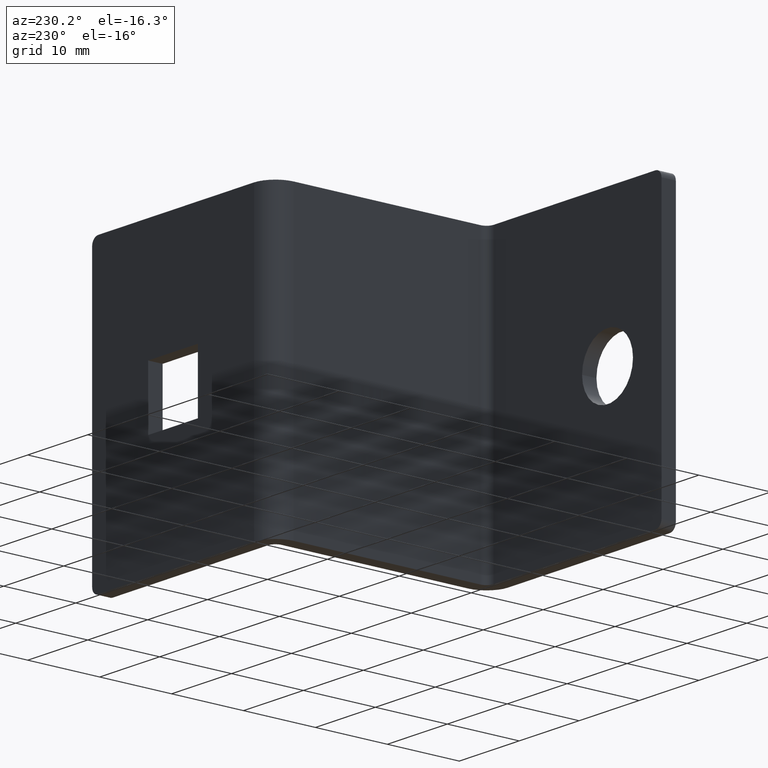
[diagram: clean part render]
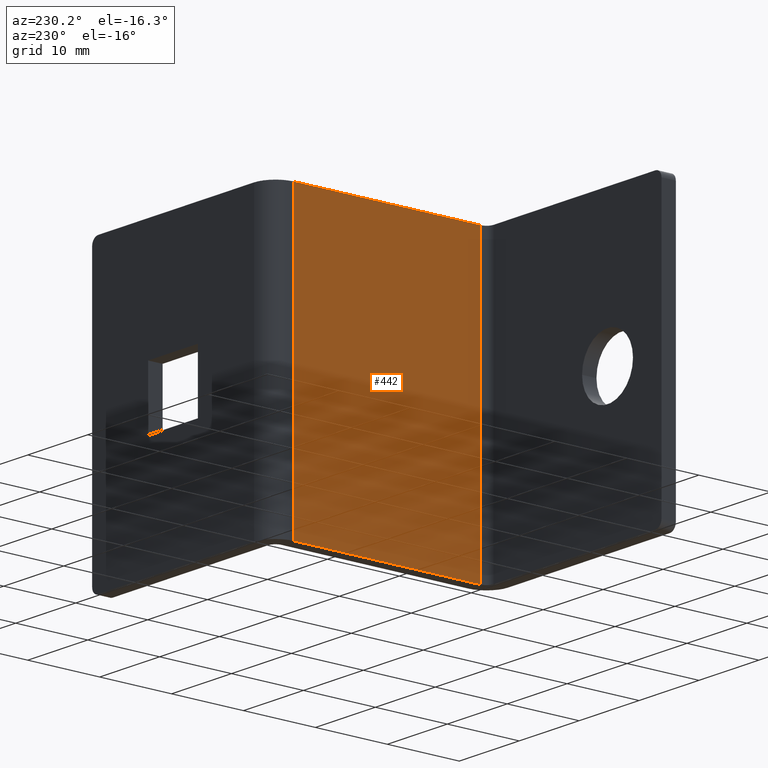
[diagram: same view with one face highlighted and labeled with its STEP entity id]
A machine part, auxiliary view. The second image highlights one B-rep face of the part: STEP entity #442.
In plain terms, the highlighted planar face has unit normal (-1, 0, 0).
Its self-contained STEP definition (entity closure, byte-faithful):
#23=PLANE('',#479);
#60=LINE('',#714,#104);
#61=LINE('',#717,#105);
#62=LINE('',#719,#106);
#63=LINE('',#720,#107);
#104=VECTOR('',#579,40.);
#105=VECTOR('',#582,26.);
#106=VECTOR('',#583,26.);
#107=VECTOR('',#584,40.);
#136=FACE_OUTER_BOUND('',#162,.T.);
#162=EDGE_LOOP('',(#358,#359,#360,#361));
#221=VERTEX_POINT('',#707);
#224=VERTEX_POINT('',#712);
#225=VERTEX_POINT('',#716);
#226=VERTEX_POINT('',#718);
#276=EDGE_CURVE('',#221,#224,#60,.T.);
#277=EDGE_CURVE('',#225,#221,#61,.T.);
#278=EDGE_CURVE('',#226,#224,#62,.T.);
#279=EDGE_CURVE('',#225,#226,#63,.T.);
#358=ORIENTED_EDGE('',*,*,#277,.T.);
#359=ORIENTED_EDGE('',*,*,#276,.T.);
#360=ORIENTED_EDGE('',*,*,#278,.F.);
#361=ORIENTED_EDGE('',*,*,#279,.F.);
#442=ADVANCED_FACE('',(#136),#23,.T.);
#479=AXIS2_PLACEMENT_3D('',#715,#580,#581);
#579=DIRECTION('',(0.,0.,1.));
#580=DIRECTION('center_axis',(-1.,0.,0.));
#581=DIRECTION('ref_axis',(0.,-1.,0.));
#582=DIRECTION('',(0.,-1.,0.));
#583=DIRECTION('',(0.,-1.,0.));
#584=DIRECTION('',(0.,0.,1.));
#707=CARTESIAN_POINT('',(40.0125837680259,38.7006300239079,0.));
#712=CARTESIAN_POINT('',(40.0125837680259,38.7006300239079,40.));
#714=CARTESIAN_POINT('',(40.0125837680259,38.7006300239079,0.));
#715=CARTESIAN_POINT('Origin',(40.0125837680259,64.7006300239079,0.));
#716=CARTESIAN_POINT('',(40.0125837680259,64.7006300239079,0.));
#717=CARTESIAN_POINT('',(40.0125837680259,64.7006300239079,0.));
#718=CARTESIAN_POINT('',(40.0125837680259,64.7006300239079,40.));
#719=CARTESIAN_POINT('',(40.0125837680259,64.7006300239079,40.));
#720=CARTESIAN_POINT('',(40.0125837680259,64.7006300239079,0.));